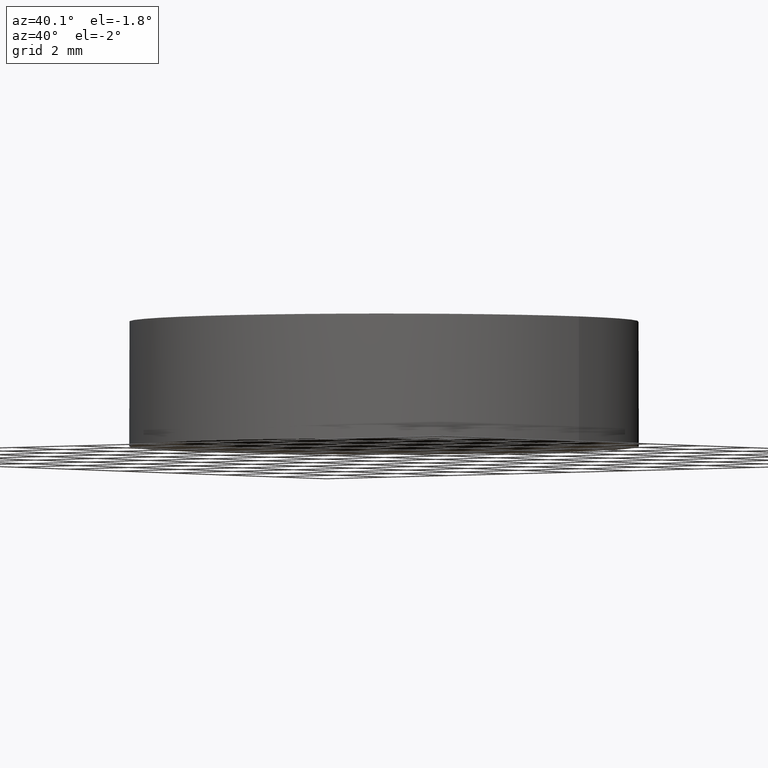
[diagram: clean part render]
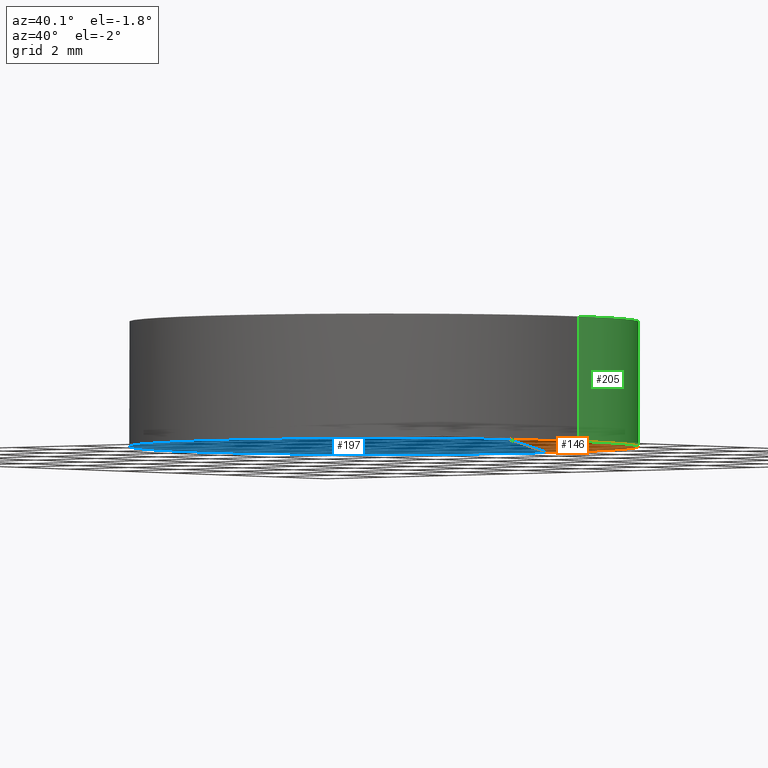
[diagram: same view with three faces highlighted in distinct colors, each labeled with its STEP entity id]
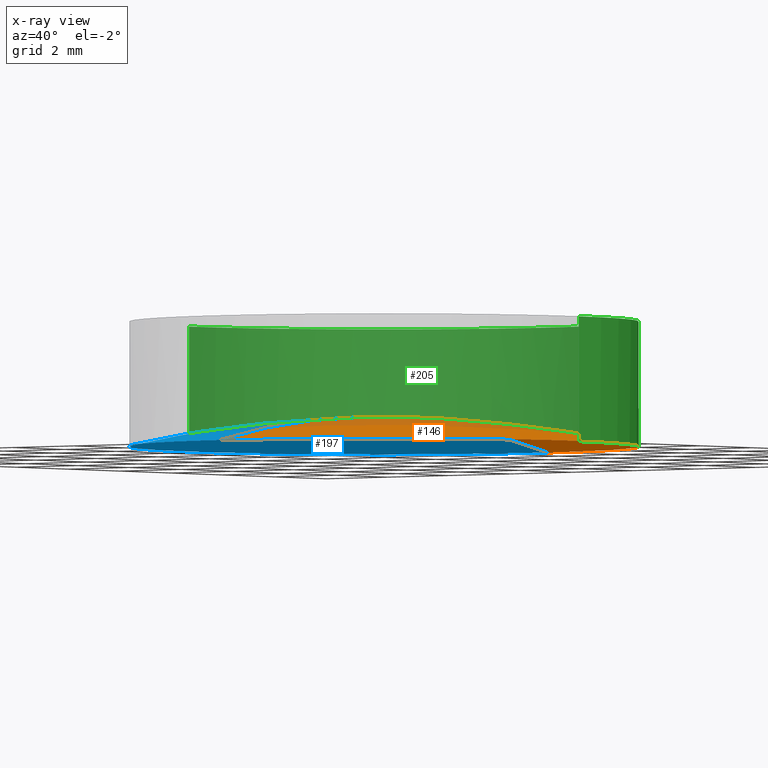
[diagram: x-ray of the same camera — body ghosted, the three highlighted faces saturated]
A machine part, auxiliary view with three faces highlighted in distinct colors.
The next image is the same camera in x-ray (body ghosted, the three faces saturated) — at least one of them is partly hidden behind the body in this view.
Their STEP definitions:

[orange] entity #146 — the highlighted face is a freeform B-spline surface patch.
#15 = CARTESIAN_POINT ( 'NONE',  ( 2.498001805406600200E-016, 1.221245327087670000E-015, -0.7148729577328010200 ) ) ;
#18 = ORIENTED_EDGE ( 'NONE', *, *, #29, .F. ) ;
#29 = EDGE_CURVE ( 'NONE', #49, #31, #99, .T. ) ;
#31 = VERTEX_POINT ( 'NONE', #87 ) ;
#36 = CARTESIAN_POINT ( 'NONE',  ( 6.442977510794964500, 2.178864801091087600, -0.4814673414066831200 ) ) ;
#39 = CARTESIAN_POINT ( 'NONE',  ( 2.096719873446634400, -6.424895732495729200, -0.7320587389839757800 ) ) ;
#49 = VERTEX_POINT ( 'NONE', #235 ) ;
#64 = VERTEX_POINT ( 'NONE', #140 ) ;
#65 = DIRECTION ( 'NONE',  ( 2.543642856077738600E-016, 1.000000000000000000, -4.859169400495258500E-016 ) ) ;
#66 = CARTESIAN_POINT ( 'NONE',  ( 6.223728461929913400, 6.424895732495724800, -1.436955944092083800 ) ) ;
#70 = CIRCLE ( 'NONE', #204, 28.55999999999999900 ) ;
#71 = CARTESIAN_POINT ( 'NONE',  ( 4.327376615626792300, -2.178864801091093800, 0.003984272291321171700 ) ) ;
#73 = EDGE_CURVE ( 'NONE', #31, #64, #92, .T. ) ;
#76 = EDGE_LOOP ( 'NONE', ( #211, #187, #18 ) ) ;
#84 = DIRECTION ( 'NONE',  ( 0.0000000000000000000, 0.0000000000000000000, 1.000000000000000000 ) ) ;
#87 = CARTESIAN_POINT ( 'NONE',  ( 6.349999999999999600, 1.221245327087670000E-015, -0.7148729577328010200 ) ) ;
#92 = CIRCLE ( 'NONE', #135, 6.349999999999999600 ) ;
#93 = CARTESIAN_POINT ( 'NONE',  ( 2.170582967057099700, 2.178864801091089800, 0.2482619306389439500 ) ) ;
#94 = CARTESIAN_POINT ( 'NONE',  ( 2.096719873446637000, 6.424895732495724800, -0.7320587389839757800 ) ) ;
#99 = CIRCLE ( 'NONE', #172, 6.349999999999999600 ) ;
#106 = CARTESIAN_POINT ( 'NONE',  ( 0.0000000000000000000, -1.776356839400250100E-015, -28.55999999999999900 ) ) ;
#120 = CARTESIAN_POINT ( 'NONE',  ( 6.442977510794963600, -2.178864801091095100, -0.4814673414066830700 ) ) ;
#121 = DIRECTION ( 'NONE',  ( 1.000000000000000000, 0.0000000000000000000, 0.0000000000000000000 ) ) ;
#122 = DIRECTION ( 'NONE',  ( 1.000000000000000000, 0.0000000000000000000, 0.0000000000000000000 ) ) ;
#126 = CARTESIAN_POINT ( 'NONE',  ( 2.498001805406600200E-016, 1.221245327087670000E-015, -0.7148729577328010200 ) ) ;
#131 = FACE_OUTER_BOUND ( 'NONE', #76, .T. ) ;
#135 = AXIS2_PLACEMENT_3D ( 'NONE', #126, #152, #122 ) ;
#140 = CARTESIAN_POINT ( 'NONE',  ( 7.736198946050042500E-015, 6.349999999999996100, -0.7148729577327993500 ) ) ;
#142 = CARTESIAN_POINT ( 'NONE',  ( 6.223728461929908900, -6.424895732495731000, -1.436955944092083600 ) ) ;
#146 = ADVANCED_FACE ( 'NONE', ( #131 ), #164, .F. ) ;
#152 = DIRECTION ( 'NONE',  ( 0.0000000000000000000, 0.0000000000000000000, 1.000000000000000000 ) ) ;
#155 = CARTESIAN_POINT ( 'NONE',  ( 7.751471923961347200E-015, 6.424895732495726500, -0.7320587389839754400 ) ) ;
#156 = CARTESIAN_POINT ( 'NONE',  ( 2.170582967057098400, -2.178864801091092900, 0.2482619306389439500 ) ) ;
#164 =( BOUNDED_SURFACE ( )  B_SPLINE_SURFACE ( 3, 3, ( 
 ( #155, #94, #200, #66 ),
 ( #221, #93, #234, #36 ),
 ( #180, #156, #71, #120 ),
 ( #218, #39, #176, #142 ) ),
 .UNSPECIFIED., .F., .F., .F. ) 
 B_SPLINE_SURFACE_WITH_KNOTS ( ( 4, 4 ),
 ( 4, 4 ),
 ( 0.0000000000000000000, 1.000000000000000000 ),
 ( 0.0000000000000000000, 1.000000000000000000 ),
 .UNSPECIFIED. ) 
 GEOMETRIC_REPRESENTATION_ITEM ( )  RATIONAL_B_SPLINE_SURFACE ( (
 ( 1.000000000000000000, 0.9957647880172656500, 0.9957647880172656500, 1.000000000000000000),
 ( 0.9829117941413638700, 0.9787489543328454800, 0.9787489543328454800, 0.9829117941413638700),
 ( 0.9829117941413638700, 0.9787489543328454800, 0.9787489543328454800, 0.9829117941413638700),
 ( 1.000000000000000000, 0.9957647880172656500, 0.9957647880172656500, 1.000000000000000000) ) ) 
 REPRESENTATION_ITEM ( '' )  SURFACE ( )  );
#172 = AXIS2_PLACEMENT_3D ( 'NONE', #15, #84, #121 ) ;
#176 = CARTESIAN_POINT ( 'NONE',  ( 4.180119667194575500, -6.424895732495729200, -0.9680238362273629900 ) ) ;
#180 = CARTESIAN_POINT ( 'NONE',  ( 5.778479073015527400E-015, -2.178864801091092900, 0.2482619306389444400 ) ) ;
#187 = ORIENTED_EDGE ( 'NONE', *, *, #73, .F. ) ;
#193 = EDGE_CURVE ( 'NONE', #64, #49, #70, .T. ) ;
#198 = DIRECTION ( 'NONE',  ( 1.000000000000000000, -2.543642856077740100E-016, -2.198225105293790000E-016 ) ) ;
#200 = CARTESIAN_POINT ( 'NONE',  ( 4.180119667194579900, 6.424895732495724800, -0.9680238362273631000 ) ) ;
#204 = AXIS2_PLACEMENT_3D ( 'NONE', #106, #198, #65 ) ;
#211 = ORIENTED_EDGE ( 'NONE', *, *, #193, .F. ) ;
#218 = CARTESIAN_POINT ( 'NONE',  ( 4.482943897759923300E-015, -6.424895732495729200, -0.7320587389839754400 ) ) ;
#221 = CARTESIAN_POINT ( 'NONE',  ( 6.886929850146446600E-015, 2.178864801091090300, 0.2482619306389444400 ) ) ;
#234 = CARTESIAN_POINT ( 'NONE',  ( 4.327376615626792300, 2.178864801091088900, 0.003984272291321063300 ) ) ;
#235 = CARTESIAN_POINT ( 'NONE',  ( 4.505772518831313000E-015, -6.349999999999997000, -0.7148729577328011300 ) ) ;

[blue] entity #197 — the highlighted face is a freeform B-spline surface patch.
#1 = CARTESIAN_POINT ( 'NONE',  ( -4.327376615626787000, -2.178864801091092500, 0.003984272291318299000 ) ) ;
#2 = CARTESIAN_POINT ( 'NONE',  ( -2.096719873446632600, -6.424895732495727400, -0.7320587389839786600 ) ) ;
#9 = AXIS2_PLACEMENT_3D ( 'NONE', #27, #78, #26 ) ;
#11 =( BOUNDED_SURFACE ( )  B_SPLINE_SURFACE ( 3, 3, ( 
 ( #108, #52, #175, #222 ),
 ( #109, #107, #54, #179 ),
 ( #154, #1, #69, #125 ),
 ( #20, #141, #2, #90 ) ),
 .UNSPECIFIED., .F., .F., .F. ) 
 B_SPLINE_SURFACE_WITH_KNOTS ( ( 4, 4 ),
 ( 4, 4 ),
 ( 0.0000000000000000000, 1.000000000000000000 ),
 ( 0.0000000000000000000, 1.000000000000000000 ),
 .UNSPECIFIED. ) 
 GEOMETRIC_REPRESENTATION_ITEM ( )  RATIONAL_B_SPLINE_SURFACE ( (
 ( 1.000000000000000000, 0.9957647880172656500, 0.9957647880172656500, 1.000000000000000000),
 ( 0.9829117941413638700, 0.9787489543328454800, 0.9787489543328454800, 0.9829117941413638700),
 ( 0.9829117941413638700, 0.9787489543328454800, 0.9787489543328454800, 0.9829117941413638700),
 ( 1.000000000000000000, 0.9957647880172656500, 0.9957647880172656500, 1.000000000000000000) ) ) 
 REPRESENTATION_ITEM ( '' )  SURFACE ( )  );
#20 = CARTESIAN_POINT ( 'NONE',  ( -6.223728461929907100, -6.424895732495728300, -1.436955944092086000 ) ) ;
#24 = EDGE_LOOP ( 'NONE', ( #165, #60, #53 ) ) ;
#26 = DIRECTION ( 'NONE',  ( 1.000000000000000000, 0.0000000000000000000, 0.0000000000000000000 ) ) ;
#27 = CARTESIAN_POINT ( 'NONE',  ( 2.498001805406600200E-016, 1.221245327087670000E-015, -0.7148729577328010200 ) ) ;
#49 = VERTEX_POINT ( 'NONE', #235 ) ;
#52 = CARTESIAN_POINT ( 'NONE',  ( -4.180119667194572800, 6.424895732495726500, -0.9680238362273655400 ) ) ;
#53 = ORIENTED_EDGE ( 'NONE', *, *, #231, .F. ) ;
#54 = CARTESIAN_POINT ( 'NONE',  ( -2.170582967057093500, 2.178864801091090300, 0.2482619306389410900 ) ) ;
#60 = ORIENTED_EDGE ( 'NONE', *, *, #193, .T. ) ;
#64 = VERTEX_POINT ( 'NONE', #140 ) ;
#65 = DIRECTION ( 'NONE',  ( 2.543642856077738600E-016, 1.000000000000000000, -4.859169400495258500E-016 ) ) ;
#69 = CARTESIAN_POINT ( 'NONE',  ( -2.170582967057093500, -2.178864801091092900, 0.2482619306389409800 ) ) ;
#70 = CIRCLE ( 'NONE', #204, 28.55999999999999900 ) ;
#77 = CARTESIAN_POINT ( 'NONE',  ( -6.349999999999999600, 1.998896044546239400E-015, -0.7148729577328010200 ) ) ;
#78 = DIRECTION ( 'NONE',  ( 0.0000000000000000000, 0.0000000000000000000, 1.000000000000000000 ) ) ;
#86 = CIRCLE ( 'NONE', #118, 6.349999999999999600 ) ;
#90 = CARTESIAN_POINT ( 'NONE',  ( -2.602085213965210600E-015, -6.424895732495729200, -0.7320587389839786600 ) ) ;
#97 = CARTESIAN_POINT ( 'NONE',  ( 2.498001805406600200E-016, 1.221245327087670000E-015, -0.7148729577328010200 ) ) ;
#106 = CARTESIAN_POINT ( 'NONE',  ( 0.0000000000000000000, -1.776356839400250100E-015, -28.55999999999999900 ) ) ;
#107 = CARTESIAN_POINT ( 'NONE',  ( -4.327376615626787000, 2.178864801091090700, 0.003984272291318732700 ) ) ;
#108 = CARTESIAN_POINT ( 'NONE',  ( -6.223728461929905400, 6.424895732495727400, -1.436955944092086000 ) ) ;
#109 = CARTESIAN_POINT ( 'NONE',  ( -6.442977510794959200, 2.178864801091091200, -0.4814673414066851800 ) ) ;
#118 = AXIS2_PLACEMENT_3D ( 'NONE', #97, #224, #223 ) ;
#125 = CARTESIAN_POINT ( 'NONE',  ( -8.673617379884035500E-016, -2.178864801091093400, 0.2482619306389409500 ) ) ;
#133 = CIRCLE ( 'NONE', #9, 6.349999999999999600 ) ;
#140 = CARTESIAN_POINT ( 'NONE',  ( 7.736198946050042500E-015, 6.349999999999996100, -0.7148729577327993500 ) ) ;
#141 = CARTESIAN_POINT ( 'NONE',  ( -4.180119667194574600, -6.424895732495727400, -0.9680238362273655400 ) ) ;
#154 = CARTESIAN_POINT ( 'NONE',  ( -6.442977510794959200, -2.178864801091092000, -0.4814673414066855700 ) ) ;
#165 = ORIENTED_EDGE ( 'NONE', *, *, #228, .F. ) ;
#175 = CARTESIAN_POINT ( 'NONE',  ( -2.096719873446629900, 6.424895732495726500, -0.7320587389839786600 ) ) ;
#179 = CARTESIAN_POINT ( 'NONE',  ( -8.673617379884035500E-016, 2.178864801091089400, 0.2482619306389412000 ) ) ;
#193 = EDGE_CURVE ( 'NONE', #64, #49, #70, .T. ) ;
#197 = ADVANCED_FACE ( 'NONE', ( #213 ), #11, .F. ) ;
#198 = DIRECTION ( 'NONE',  ( 1.000000000000000000, -2.543642856077740100E-016, -2.198225105293790000E-016 ) ) ;
#204 = AXIS2_PLACEMENT_3D ( 'NONE', #106, #198, #65 ) ;
#213 = FACE_OUTER_BOUND ( 'NONE', #24, .T. ) ;
#222 = CARTESIAN_POINT ( 'NONE',  ( 8.673617379884035500E-016, 6.424895732495726500, -0.7320587389839786600 ) ) ;
#223 = DIRECTION ( 'NONE',  ( 1.000000000000000000, 0.0000000000000000000, 0.0000000000000000000 ) ) ;
#224 = DIRECTION ( 'NONE',  ( 0.0000000000000000000, 0.0000000000000000000, 1.000000000000000000 ) ) ;
#228 = EDGE_CURVE ( 'NONE', #64, #230, #86, .T. ) ;
#230 = VERTEX_POINT ( 'NONE', #77 ) ;
#231 = EDGE_CURVE ( 'NONE', #230, #49, #133, .T. ) ;
#235 = CARTESIAN_POINT ( 'NONE',  ( 4.505772518831313000E-015, -6.349999999999997000, -0.7148729577328011300 ) ) ;

[green] entity #205 — the highlighted cylindrical surface (partial cylindrical patch) has radius 6.35 mm, axis along (0, 0, 1).
#7 = DIRECTION ( 'NONE',  ( 0.0000000000000000000, 0.0000000000000000000, 1.000000000000000000 ) ) ;
#28 = VECTOR ( 'NONE', #7, 1000.000000000000000 ) ;
#31 = VERTEX_POINT ( 'NONE', #87 ) ;
#34 = ORIENTED_EDGE ( 'NONE', *, *, #219, .T. ) ;
#37 = DIRECTION ( 'NONE',  ( 1.000000000000000000, 0.0000000000000000000, 0.0000000000000000000 ) ) ;
#40 = CARTESIAN_POINT ( 'NONE',  ( 2.498001805406600200E-016, 1.221245327087670000E-015, -0.7148729577328010200 ) ) ;
#48 = ORIENTED_EDGE ( 'NONE', *, *, #228, .T. ) ;
#55 = DIRECTION ( 'NONE',  ( 0.0000000000000000000, 0.0000000000000000000, 1.000000000000000000 ) ) ;
#63 = CYLINDRICAL_SURFACE ( 'NONE', #130, 6.349999999999999600 ) ;
#64 = VERTEX_POINT ( 'NONE', #140 ) ;
#68 = DIRECTION ( 'NONE',  ( -0.0000000000000000000, -0.0000000000000000000, -1.000000000000000000 ) ) ;
#73 = EDGE_CURVE ( 'NONE', #31, #64, #92, .T. ) ;
#77 = CARTESIAN_POINT ( 'NONE',  ( -6.349999999999999600, 1.998896044546239400E-015, -0.7148729577328010200 ) ) ;
#83 = CIRCLE ( 'NONE', #188, 6.349999999999999600 ) ;
#86 = CIRCLE ( 'NONE', #118, 6.349999999999999600 ) ;
#87 = CARTESIAN_POINT ( 'NONE',  ( 6.349999999999999600, 1.221245327087670000E-015, -0.7148729577328010200 ) ) ;
#91 = CARTESIAN_POINT ( 'NONE',  ( 6.349999999999999600, 1.221245327087670000E-015, -0.7148729577328010200 ) ) ;
#92 = CIRCLE ( 'NONE', #135, 6.349999999999999600 ) ;
#97 = CARTESIAN_POINT ( 'NONE',  ( 2.498001805406600200E-016, 1.221245327087670000E-015, -0.7148729577328010200 ) ) ;
#103 = ORIENTED_EDGE ( 'NONE', *, *, #119, .T. ) ;
#111 = LINE ( 'NONE', #129, #28 ) ;
#113 = VERTEX_POINT ( 'NONE', #202 ) ;
#118 = AXIS2_PLACEMENT_3D ( 'NONE', #97, #224, #223 ) ;
#119 = EDGE_CURVE ( 'NONE', #148, #113, #83, .T. ) ;
#122 = DIRECTION ( 'NONE',  ( 1.000000000000000000, 0.0000000000000000000, 0.0000000000000000000 ) ) ;
#123 = LINE ( 'NONE', #91, #167 ) ;
#126 = CARTESIAN_POINT ( 'NONE',  ( 2.498001805406600200E-016, 1.221245327087670000E-015, -0.7148729577328010200 ) ) ;
#129 = CARTESIAN_POINT ( 'NONE',  ( -6.349999999999999600, 1.998896044546239400E-015, -0.7148729577328010200 ) ) ;
#130 = AXIS2_PLACEMENT_3D ( 'NONE', #40, #55, #185 ) ;
#135 = AXIS2_PLACEMENT_3D ( 'NONE', #126, #152, #122 ) ;
#140 = CARTESIAN_POINT ( 'NONE',  ( 7.736198946050042500E-015, 6.349999999999996100, -0.7148729577327993500 ) ) ;
#148 = VERTEX_POINT ( 'NONE', #217 ) ;
#152 = DIRECTION ( 'NONE',  ( 0.0000000000000000000, 0.0000000000000000000, 1.000000000000000000 ) ) ;
#153 = EDGE_LOOP ( 'NONE', ( #184, #48, #34, #103, #220 ) ) ;
#157 = FACE_OUTER_BOUND ( 'NONE', #153, .T. ) ;
#167 = VECTOR ( 'NONE', #201, 1000.000000000000000 ) ;
#174 = CARTESIAN_POINT ( 'NONE',  ( 2.498001805406600200E-016, 1.221245327087670000E-015, 2.399999999999999900 ) ) ;
#178 = EDGE_CURVE ( 'NONE', #31, #113, #123, .T. ) ;
#184 = ORIENTED_EDGE ( 'NONE', *, *, #73, .T. ) ;
#185 = DIRECTION ( 'NONE',  ( 1.000000000000000000, 0.0000000000000000000, 0.0000000000000000000 ) ) ;
#188 = AXIS2_PLACEMENT_3D ( 'NONE', #174, #68, #37 ) ;
#201 = DIRECTION ( 'NONE',  ( 0.0000000000000000000, 0.0000000000000000000, 1.000000000000000000 ) ) ;
#202 = CARTESIAN_POINT ( 'NONE',  ( 6.349999999999999600, 1.221245327087670000E-015, 2.399999999999999900 ) ) ;
#205 = ADVANCED_FACE ( 'NONE', ( #157 ), #63, .T. ) ;
#217 = CARTESIAN_POINT ( 'NONE',  ( -6.349999999999999600, 1.998896044546239400E-015, 2.399999999999999900 ) ) ;
#219 = EDGE_CURVE ( 'NONE', #230, #148, #111, .T. ) ;
#220 = ORIENTED_EDGE ( 'NONE', *, *, #178, .F. ) ;
#223 = DIRECTION ( 'NONE',  ( 1.000000000000000000, 0.0000000000000000000, 0.0000000000000000000 ) ) ;
#224 = DIRECTION ( 'NONE',  ( 0.0000000000000000000, 0.0000000000000000000, 1.000000000000000000 ) ) ;
#228 = EDGE_CURVE ( 'NONE', #64, #230, #86, .T. ) ;
#230 = VERTEX_POINT ( 'NONE', #77 ) ;